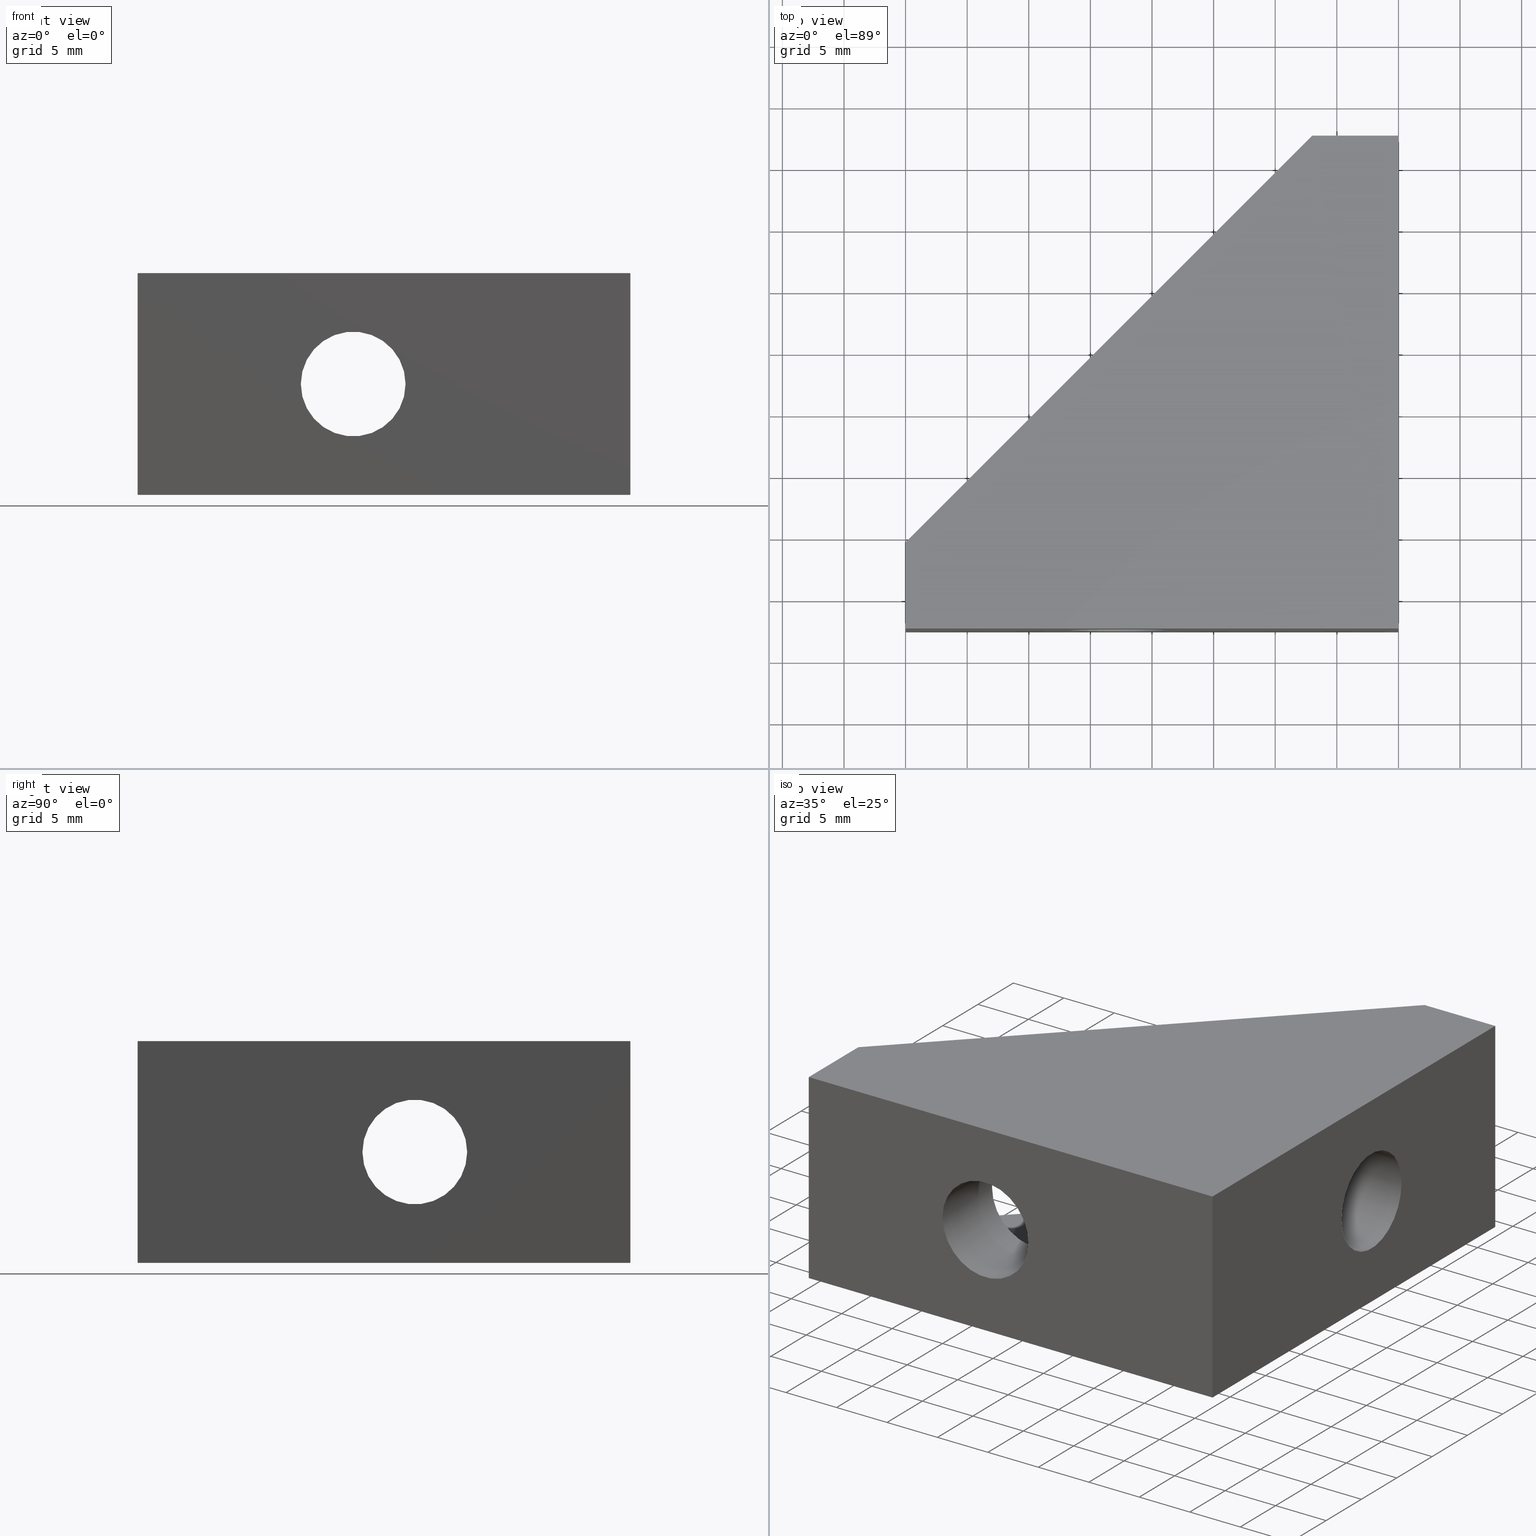
[diagram: canonical four-view strip — front | top / right | iso, engineering-drawing reading convention]
A machine part, canonical four-view strip (front | top / right | iso — engineering-drawing reading convention). The complete STEP part file that produces these views, byte-faithful:
ISO-10303-21;
HEADER;
/* Generated by software containing ST-Developer
 * from STEP Tools, Inc. (www.steptools.com) 
 */

FILE_DESCRIPTION(
/* description */ ('SQUADRETTA 18X40  PER M8'),
/* implementation_level */ '2;1');

FILE_NAME(
/* name */ 
'Q:\\Catalogo\\2_Accessori Dierre\\Per Download Web e catalogo cartace
o\\CATALOGO ELEMENTI ASSEMBLAGGIO\\PAGINA 30\\DSQAL0000002.stp',
/* time_stamp */ '2018-03-07T11:24:41+01:00',
/* author */ ('fzagni'),
/* organization */ (''),
/* preprocessor_version */ 'ST-DEVELOPER v16.1',
/* originating_system */ 'Autodesk Inventor 2016',
/* authorisation */ '');

FILE_SCHEMA (('AUTOMOTIVE_DESIGN { 1 0 10303 214 3 1 1 }'));
ENDSEC;

DATA;
#10=MECHANICAL_DESIGN_GEOMETRIC_PRESENTATION_REPRESENTATION('',(#13),#401);
#11=SHAPE_REPRESENTATION_RELATIONSHIP('SRR','None',#410,#12);
#12=ADVANCED_BREP_SHAPE_REPRESENTATION('',(#14),#400);
#13=STYLED_ITEM('',(#419),#14);
#14=MANIFOLD_SOLID_BREP('None',#249);
#15=CYLINDRICAL_SURFACE('',#267,4.25);
#16=CYLINDRICAL_SURFACE('',#268,4.25);
#17=FACE_BOUND('',#42,.T.);
#18=FACE_BOUND('',#44,.T.);
#19=FACE_BOUND('',#52,.T.);
#20=FACE_BOUND('',#56,.T.);
#21=FACE_BOUND('',#58,.T.);
#22=FACE_BOUND('',#60,.T.);
#23=CIRCLE('',#252,4.25);
#24=CIRCLE('',#254,4.25);
#25=CIRCLE('',#262,4.25);
#26=CIRCLE('',#266,4.25);
#27=FACE_OUTER_BOUND('',#41,.T.);
#28=FACE_OUTER_BOUND('',#43,.T.);
#29=FACE_OUTER_BOUND('',#45,.T.);
#30=FACE_OUTER_BOUND('',#46,.T.);
#31=FACE_OUTER_BOUND('',#47,.T.);
#32=FACE_OUTER_BOUND('',#48,.T.);
#33=FACE_OUTER_BOUND('',#49,.T.);
#34=FACE_OUTER_BOUND('',#50,.T.);
#35=FACE_OUTER_BOUND('',#51,.T.);
#36=FACE_OUTER_BOUND('',#53,.T.);
#37=FACE_OUTER_BOUND('',#54,.T.);
#38=FACE_OUTER_BOUND('',#55,.T.);
#39=FACE_OUTER_BOUND('',#57,.T.);
#40=FACE_OUTER_BOUND('',#59,.T.);
#41=EDGE_LOOP('',(#163,#164,#165,#166));
#42=EDGE_LOOP('',(#167));
#43=EDGE_LOOP('',(#168,#169,#170,#171));
#44=EDGE_LOOP('',(#172));
#45=EDGE_LOOP('',(#173,#174,#175,#176));
#46=EDGE_LOOP('',(#177,#178,#179));
#47=EDGE_LOOP('',(#180,#181,#182,#183,#184));
#48=EDGE_LOOP('',(#185,#186,#187,#188));
#49=EDGE_LOOP('',(#189,#190,#191));
#50=EDGE_LOOP('',(#192,#193,#194,#195,#196));
#51=EDGE_LOOP('',(#197,#198,#199,#200));
#52=EDGE_LOOP('',(#201));
#53=EDGE_LOOP('',(#202,#203,#204,#205,#206,#207));
#54=EDGE_LOOP('',(#208,#209,#210,#211,#212,#213));
#55=EDGE_LOOP('',(#214,#215,#216,#217));
#56=EDGE_LOOP('',(#218));
#57=EDGE_LOOP('',(#219));
#58=EDGE_LOOP('',(#220));
#59=EDGE_LOOP('',(#221));
#60=EDGE_LOOP('',(#222));
#61=LINE('',#337,#87);
#62=LINE('',#339,#88);
#63=LINE('',#341,#89);
#64=LINE('',#342,#90);
#65=LINE('',#347,#91);
#66=LINE('',#349,#92);
#67=LINE('',#350,#93);
#68=LINE('',#356,#94);
#69=LINE('',#357,#95);
#70=LINE('',#358,#96);
#71=LINE('',#359,#97);
#72=LINE('',#363,#98);
#73=LINE('',#365,#99);
#74=LINE('',#367,#100);
#75=LINE('',#368,#101);
#76=LINE('',#371,#102);
#77=LINE('',#372,#103);
#78=LINE('',#374,#104);
#79=LINE('',#375,#105);
#80=LINE('',#379,#106);
#81=LINE('',#381,#107);
#82=LINE('',#383,#108);
#83=LINE('',#384,#109);
#84=LINE('',#386,#110);
#85=LINE('',#387,#111);
#86=LINE('',#392,#112);
#87=VECTOR('',#273,32.9999999998681);
#88=VECTOR('',#274,14.);
#89=VECTOR('',#275,32.9999999998681);
#90=VECTOR('',#276,14.);
#91=VECTOR('',#281,32.9999999998681);
#92=VECTOR('',#282,32.9999999998681);
#93=VECTOR('',#283,14.);
#94=VECTOR('',#288,46.6690475581256);
#95=VECTOR('',#289,2.);
#96=VECTOR('',#290,46.6690475581256);
#97=VECTOR('',#291,2.);
#98=VECTOR('',#296,6.99999999997181);
#99=VECTOR('',#297,39.9999999998399);
#100=VECTOR('',#298,39.9999999998399);
#101=VECTOR('',#299,6.99999999997181);
#102=VECTOR('',#302,2.);
#103=VECTOR('',#303,46.6690475581256);
#104=VECTOR('',#304,2.);
#105=VECTOR('',#305,46.6690475581256);
#106=VECTOR('',#310,6.99999999997181);
#107=VECTOR('',#311,6.99999999997181);
#108=VECTOR('',#312,39.9999999998399);
#109=VECTOR('',#313,39.9999999998399);
#110=VECTOR('',#316,18.);
#111=VECTOR('',#317,18.);
#112=VECTOR('',#324,18.);
#113=VERTEX_POINT('',#335);
#114=VERTEX_POINT('',#336);
#115=VERTEX_POINT('',#338);
#116=VERTEX_POINT('',#340);
#117=VERTEX_POINT('',#343);
#118=VERTEX_POINT('',#346);
#119=VERTEX_POINT('',#348);
#120=VERTEX_POINT('',#351);
#121=VERTEX_POINT('',#354);
#122=VERTEX_POINT('',#355);
#123=VERTEX_POINT('',#362);
#124=VERTEX_POINT('',#364);
#125=VERTEX_POINT('',#366);
#126=VERTEX_POINT('',#370);
#127=VERTEX_POINT('',#373);
#128=VERTEX_POINT('',#378);
#129=VERTEX_POINT('',#380);
#130=VERTEX_POINT('',#382);
#131=VERTEX_POINT('',#388);
#132=VERTEX_POINT('',#394);
#133=EDGE_CURVE('',#113,#114,#61,.T.);
#134=EDGE_CURVE('',#114,#115,#62,.T.);
#135=EDGE_CURVE('',#116,#115,#63,.T.);
#136=EDGE_CURVE('',#113,#116,#64,.T.);
#137=EDGE_CURVE('',#117,#117,#23,.T.);
#138=EDGE_CURVE('',#118,#115,#65,.T.);
#139=EDGE_CURVE('',#119,#114,#66,.T.);
#140=EDGE_CURVE('',#119,#118,#67,.T.);
#141=EDGE_CURVE('',#120,#120,#24,.T.);
#142=EDGE_CURVE('',#121,#122,#68,.T.);
#143=EDGE_CURVE('',#116,#121,#69,.T.);
#144=EDGE_CURVE('',#116,#118,#70,.T.);
#145=EDGE_CURVE('',#118,#122,#71,.T.);
#146=EDGE_CURVE('',#122,#123,#72,.T.);
#147=EDGE_CURVE('',#123,#124,#73,.T.);
#148=EDGE_CURVE('',#124,#125,#74,.T.);
#149=EDGE_CURVE('',#125,#121,#75,.T.);
#150=EDGE_CURVE('',#126,#119,#76,.T.);
#151=EDGE_CURVE('',#119,#113,#77,.T.);
#152=EDGE_CURVE('',#127,#113,#78,.T.);
#153=EDGE_CURVE('',#126,#127,#79,.T.);
#154=EDGE_CURVE('',#126,#128,#80,.T.);
#155=EDGE_CURVE('',#129,#127,#81,.T.);
#156=EDGE_CURVE('',#130,#129,#82,.T.);
#157=EDGE_CURVE('',#128,#130,#83,.T.);
#158=EDGE_CURVE('',#130,#124,#84,.T.);
#159=EDGE_CURVE('',#129,#125,#85,.T.);
#160=EDGE_CURVE('',#131,#131,#25,.T.);
#161=EDGE_CURVE('',#128,#123,#86,.T.);
#162=EDGE_CURVE('',#132,#132,#26,.T.);
#163=ORIENTED_EDGE('',*,*,#133,.T.);
#164=ORIENTED_EDGE('',*,*,#134,.T.);
#165=ORIENTED_EDGE('',*,*,#135,.F.);
#166=ORIENTED_EDGE('',*,*,#136,.F.);
#167=ORIENTED_EDGE('',*,*,#137,.T.);
#168=ORIENTED_EDGE('',*,*,#138,.T.);
#169=ORIENTED_EDGE('',*,*,#134,.F.);
#170=ORIENTED_EDGE('',*,*,#139,.F.);
#171=ORIENTED_EDGE('',*,*,#140,.T.);
#172=ORIENTED_EDGE('',*,*,#141,.F.);
#173=ORIENTED_EDGE('',*,*,#142,.F.);
#174=ORIENTED_EDGE('',*,*,#143,.F.);
#175=ORIENTED_EDGE('',*,*,#144,.T.);
#176=ORIENTED_EDGE('',*,*,#145,.T.);
#177=ORIENTED_EDGE('',*,*,#135,.T.);
#178=ORIENTED_EDGE('',*,*,#138,.F.);
#179=ORIENTED_EDGE('',*,*,#144,.F.);
#180=ORIENTED_EDGE('',*,*,#142,.T.);
#181=ORIENTED_EDGE('',*,*,#146,.T.);
#182=ORIENTED_EDGE('',*,*,#147,.T.);
#183=ORIENTED_EDGE('',*,*,#148,.T.);
#184=ORIENTED_EDGE('',*,*,#149,.T.);
#185=ORIENTED_EDGE('',*,*,#150,.T.);
#186=ORIENTED_EDGE('',*,*,#151,.T.);
#187=ORIENTED_EDGE('',*,*,#152,.F.);
#188=ORIENTED_EDGE('',*,*,#153,.F.);
#189=ORIENTED_EDGE('',*,*,#139,.T.);
#190=ORIENTED_EDGE('',*,*,#133,.F.);
#191=ORIENTED_EDGE('',*,*,#151,.F.);
#192=ORIENTED_EDGE('',*,*,#154,.F.);
#193=ORIENTED_EDGE('',*,*,#153,.T.);
#194=ORIENTED_EDGE('',*,*,#155,.F.);
#195=ORIENTED_EDGE('',*,*,#156,.F.);
#196=ORIENTED_EDGE('',*,*,#157,.F.);
#197=ORIENTED_EDGE('',*,*,#148,.F.);
#198=ORIENTED_EDGE('',*,*,#158,.F.);
#199=ORIENTED_EDGE('',*,*,#156,.T.);
#200=ORIENTED_EDGE('',*,*,#159,.T.);
#201=ORIENTED_EDGE('',*,*,#160,.F.);
#202=ORIENTED_EDGE('',*,*,#143,.T.);
#203=ORIENTED_EDGE('',*,*,#149,.F.);
#204=ORIENTED_EDGE('',*,*,#159,.F.);
#205=ORIENTED_EDGE('',*,*,#155,.T.);
#206=ORIENTED_EDGE('',*,*,#152,.T.);
#207=ORIENTED_EDGE('',*,*,#136,.T.);
#208=ORIENTED_EDGE('',*,*,#146,.F.);
#209=ORIENTED_EDGE('',*,*,#145,.F.);
#210=ORIENTED_EDGE('',*,*,#140,.F.);
#211=ORIENTED_EDGE('',*,*,#150,.F.);
#212=ORIENTED_EDGE('',*,*,#154,.T.);
#213=ORIENTED_EDGE('',*,*,#161,.T.);
#214=ORIENTED_EDGE('',*,*,#157,.T.);
#215=ORIENTED_EDGE('',*,*,#158,.T.);
#216=ORIENTED_EDGE('',*,*,#147,.F.);
#217=ORIENTED_EDGE('',*,*,#161,.F.);
#218=ORIENTED_EDGE('',*,*,#162,.T.);
#219=ORIENTED_EDGE('',*,*,#137,.F.);
#220=ORIENTED_EDGE('',*,*,#160,.T.);
#221=ORIENTED_EDGE('',*,*,#162,.F.);
#222=ORIENTED_EDGE('',*,*,#141,.T.);
#223=PLANE('',#251);
#224=PLANE('',#253);
#225=PLANE('',#255);
#226=PLANE('',#256);
#227=PLANE('',#257);
#228=PLANE('',#258);
#229=PLANE('',#259);
#230=PLANE('',#260);
#231=PLANE('',#261);
#232=PLANE('',#263);
#233=PLANE('',#264);
#234=PLANE('',#265);
#235=ADVANCED_FACE('',(#27,#17),#223,.T.);
#236=ADVANCED_FACE('',(#28,#18),#224,.T.);
#237=ADVANCED_FACE('',(#29),#225,.F.);
#238=ADVANCED_FACE('',(#30),#226,.F.);
#239=ADVANCED_FACE('',(#31),#227,.T.);
#240=ADVANCED_FACE('',(#32),#228,.F.);
#241=ADVANCED_FACE('',(#33),#229,.F.);
#242=ADVANCED_FACE('',(#34),#230,.F.);
#243=ADVANCED_FACE('',(#35,#19),#231,.T.);
#244=ADVANCED_FACE('',(#36),#232,.T.);
#245=ADVANCED_FACE('',(#37),#233,.T.);
#246=ADVANCED_FACE('',(#38,#20),#234,.T.);
#247=ADVANCED_FACE('',(#39,#21),#15,.F.);
#248=ADVANCED_FACE('',(#40,#22),#16,.F.);
#249=CLOSED_SHELL('',(#235,#236,#237,#238,#239,#240,#241,#242,#243,#244,
#245,#246,#247,#248));
#250=AXIS2_PLACEMENT_3D('placement',#333,#269,#270);
#251=AXIS2_PLACEMENT_3D('',#334,#271,#272);
#252=AXIS2_PLACEMENT_3D('',#344,#277,#278);
#253=AXIS2_PLACEMENT_3D('',#345,#279,#280);
#254=AXIS2_PLACEMENT_3D('',#352,#284,#285);
#255=AXIS2_PLACEMENT_3D('',#353,#286,#287);
#256=AXIS2_PLACEMENT_3D('',#360,#292,#293);
#257=AXIS2_PLACEMENT_3D('',#361,#294,#295);
#258=AXIS2_PLACEMENT_3D('',#369,#300,#301);
#259=AXIS2_PLACEMENT_3D('',#376,#306,#307);
#260=AXIS2_PLACEMENT_3D('',#377,#308,#309);
#261=AXIS2_PLACEMENT_3D('',#385,#314,#315);
#262=AXIS2_PLACEMENT_3D('',#389,#318,#319);
#263=AXIS2_PLACEMENT_3D('',#390,#320,#321);
#264=AXIS2_PLACEMENT_3D('',#391,#322,#323);
#265=AXIS2_PLACEMENT_3D('',#393,#325,#326);
#266=AXIS2_PLACEMENT_3D('',#395,#327,#328);
#267=AXIS2_PLACEMENT_3D('',#396,#329,#330);
#268=AXIS2_PLACEMENT_3D('',#397,#331,#332);
#269=DIRECTION('axis',(0.,0.,1.));
#270=DIRECTION('refdir',(1.,0.,0.));
#271=DIRECTION('center_axis',(-1.,0.,0.));
#272=DIRECTION('ref_axis',(0.,0.,1.));
#273=DIRECTION('',(0.,-1.,0.));
#274=DIRECTION('',(0.,0.,1.));
#275=DIRECTION('',(0.,-1.,0.));
#276=DIRECTION('',(0.,0.,1.));
#277=DIRECTION('center_axis',(1.,0.,0.));
#278=DIRECTION('ref_axis',(0.,1.,0.));
#279=DIRECTION('center_axis',(0.,1.,0.));
#280=DIRECTION('ref_axis',(0.,0.,1.));
#281=DIRECTION('',(1.,0.,0.));
#282=DIRECTION('',(1.,0.,0.));
#283=DIRECTION('',(0.,0.,1.));
#284=DIRECTION('center_axis',(0.,1.,0.));
#285=DIRECTION('ref_axis',(-1.,0.,0.));
#286=DIRECTION('center_axis',(0.707106781186548,-0.707106781186548,0.));
#287=DIRECTION('ref_axis',(0.,0.,-1.));
#288=DIRECTION('',(-0.707106781186548,-0.707106781186548,0.));
#289=DIRECTION('',(0.,0.,1.));
#290=DIRECTION('',(-0.707106781186548,-0.707106781186548,0.));
#291=DIRECTION('',(0.,0.,1.));
#292=DIRECTION('center_axis',(0.,0.,1.));
#293=DIRECTION('ref_axis',(1.,0.,0.));
#294=DIRECTION('center_axis',(0.,0.,1.));
#295=DIRECTION('ref_axis',(1.,0.,0.));
#296=DIRECTION('',(0.,-1.,0.));
#297=DIRECTION('',(1.,0.,0.));
#298=DIRECTION('',(0.,1.,0.));
#299=DIRECTION('',(-1.,0.,0.));
#300=DIRECTION('center_axis',(0.707106781186548,-0.707106781186548,0.));
#301=DIRECTION('ref_axis',(0.,0.,-1.));
#302=DIRECTION('',(0.,0.,1.));
#303=DIRECTION('',(0.707106781186548,0.707106781186548,0.));
#304=DIRECTION('',(0.,0.,1.));
#305=DIRECTION('',(0.707106781186548,0.707106781186548,0.));
#306=DIRECTION('center_axis',(0.,0.,-1.));
#307=DIRECTION('ref_axis',(-1.,0.,0.));
#308=DIRECTION('center_axis',(0.,0.,1.));
#309=DIRECTION('ref_axis',(1.,0.,0.));
#310=DIRECTION('',(0.,-1.,0.));
#311=DIRECTION('',(-1.,0.,0.));
#312=DIRECTION('',(0.,1.,0.));
#313=DIRECTION('',(1.,0.,0.));
#314=DIRECTION('center_axis',(1.,0.,0.));
#315=DIRECTION('ref_axis',(0.,0.,-1.));
#316=DIRECTION('',(0.,0.,1.));
#317=DIRECTION('',(0.,0.,1.));
#318=DIRECTION('center_axis',(1.,0.,0.));
#319=DIRECTION('ref_axis',(0.,1.,0.));
#320=DIRECTION('center_axis',(0.,1.,0.));
#321=DIRECTION('ref_axis',(0.,0.,1.));
#322=DIRECTION('center_axis',(-1.,0.,0.));
#323=DIRECTION('ref_axis',(0.,0.,1.));
#324=DIRECTION('',(0.,0.,1.));
#325=DIRECTION('center_axis',(0.,-1.,0.));
#326=DIRECTION('ref_axis',(0.,0.,-1.));
#327=DIRECTION('center_axis',(0.,1.,0.));
#328=DIRECTION('ref_axis',(-1.,0.,0.));
#329=DIRECTION('center_axis',(1.,0.,0.));
#330=DIRECTION('ref_axis',(0.,1.,0.));
#331=DIRECTION('center_axis',(0.,1.,0.));
#332=DIRECTION('ref_axis',(-1.,0.,0.));
#333=CARTESIAN_POINT('',(0.,0.,0.));
#334=CARTESIAN_POINT('Origin',(-6.99999999997181,17.49999999993,-8.99999999996408));
#335=CARTESIAN_POINT('',(-6.99999999997181,17.49999999993,-6.99999999996408));
#336=CARTESIAN_POINT('',(-6.99999999997181,-15.4999999999382,-6.99999999996408));
#337=CARTESIAN_POINT('',(-6.99999999997181,17.49999999993,-6.99999999996408));
#338=CARTESIAN_POINT('',(-6.99999999997181,-15.4999999999382,7.00000000003592));
#339=CARTESIAN_POINT('',(-6.99999999997181,-15.4999999999382,-6.99999999996408));
#340=CARTESIAN_POINT('',(-6.99999999997181,17.49999999993,7.00000000003592));
#341=CARTESIAN_POINT('',(-6.99999999997181,17.49999999993,7.00000000003592));
#342=CARTESIAN_POINT('',(-6.99999999997181,17.49999999993,-6.99999999996408));
#343=CARTESIAN_POINT('',(-6.99999999997181,-4.25,0.));
#344=CARTESIAN_POINT('Origin',(-6.99999999997181,0.,0.));
#345=CARTESIAN_POINT('Origin',(-6.99999999997181,-15.4999999999382,-8.99999999996408));
#346=CARTESIAN_POINT('',(-39.9999999998399,-15.4999999999382,7.00000000003592));
#347=CARTESIAN_POINT('',(-39.9999999998399,-15.4999999999382,7.00000000003592));
#348=CARTESIAN_POINT('',(-39.9999999998399,-15.4999999999382,-6.99999999996408));
#349=CARTESIAN_POINT('',(-39.9999999998399,-15.4999999999382,-6.99999999996408));
#350=CARTESIAN_POINT('',(-39.9999999998399,-15.4999999999382,-6.99999999996408));
#351=CARTESIAN_POINT('',(-18.2499999999268,-15.4999999999382,3.592504E-11));
#352=CARTESIAN_POINT('Origin',(-22.4999999999268,-15.4999999999382,3.592504E-11));
#353=CARTESIAN_POINT('Origin',(-6.99999999997181,17.49999999993,9.00000000003593));
#354=CARTESIAN_POINT('',(-6.99999999997181,17.49999999993,9.00000000003593));
#355=CARTESIAN_POINT('',(-39.9999999998399,-15.4999999999382,9.00000000003593));
#356=CARTESIAN_POINT('',(-6.99999999997181,17.49999999993,9.00000000003593));
#357=CARTESIAN_POINT('',(-6.99999999997181,17.49999999993,7.00000000003592));
#358=CARTESIAN_POINT('',(-6.99999999997181,17.49999999993,7.00000000003592));
#359=CARTESIAN_POINT('',(-39.9999999998399,-15.4999999999382,7.00000000003592));
#360=CARTESIAN_POINT('Origin',(-44.0000047242893,-26.5000047243593,7.00000000003592));
#361=CARTESIAN_POINT('Origin',(-40.0000433069272,-22.5000433069972,9.00000000003593));
#362=CARTESIAN_POINT('',(-39.9999999998399,-22.49999999991,9.00000000003593));
#363=CARTESIAN_POINT('',(-39.9999999998399,-15.4999999999382,9.00000000003593));
#364=CARTESIAN_POINT('',(0.,-22.49999999991,9.00000000003593));
#365=CARTESIAN_POINT('',(-39.9999999998399,-22.49999999991,9.00000000003593));
#366=CARTESIAN_POINT('',(0.,17.49999999993,9.00000000003593));
#367=CARTESIAN_POINT('',(0.,-22.49999999991,9.00000000003593));
#368=CARTESIAN_POINT('',(0.,17.49999999993,9.00000000003593));
#369=CARTESIAN_POINT('Origin',(-39.9999999998399,-15.4999999999382,-8.99999999996408));
#370=CARTESIAN_POINT('',(-39.9999999998399,-15.4999999999382,-8.99999999996408));
#371=CARTESIAN_POINT('',(-39.9999999998399,-15.4999999999382,-8.99999999996408));
#372=CARTESIAN_POINT('',(-39.9999999998399,-15.4999999999382,-6.99999999996408));
#373=CARTESIAN_POINT('',(-6.99999999997181,17.49999999993,-8.99999999996408));
#374=CARTESIAN_POINT('',(-6.99999999997181,17.49999999993,-8.99999999996408));
#375=CARTESIAN_POINT('',(-39.9999999998399,-15.4999999999382,-8.99999999996408));
#376=CARTESIAN_POINT('Origin',(-44.0000047242893,21.5000047243793,-6.99999999996408));
#377=CARTESIAN_POINT('Origin',(-40.0000433069272,-22.5000433069972,-8.99999999996408));
#378=CARTESIAN_POINT('',(-39.9999999998399,-22.49999999991,-8.99999999996408));
#379=CARTESIAN_POINT('',(-39.9999999998399,-15.4999999999382,-8.99999999996408));
#380=CARTESIAN_POINT('',(0.,17.49999999993,-8.99999999996408));
#381=CARTESIAN_POINT('',(0.,17.49999999993,-8.99999999996408));
#382=CARTESIAN_POINT('',(0.,-22.49999999991,-8.99999999996408));
#383=CARTESIAN_POINT('',(0.,-22.49999999991,-8.99999999996408));
#384=CARTESIAN_POINT('',(-39.9999999998399,-22.49999999991,-8.99999999996408));
#385=CARTESIAN_POINT('Origin',(0.,-22.5000433069972,-9.00004330705133));
#386=CARTESIAN_POINT('',(0.,-22.49999999991,-8.99999999996408));
#387=CARTESIAN_POINT('',(0.,17.49999999993,-8.99999999996408));
#388=CARTESIAN_POINT('',(0.,-4.25,0.));
#389=CARTESIAN_POINT('Origin',(0.,0.,0.));
#390=CARTESIAN_POINT('Origin',(4.3307087253E-5,17.49999999993,-9.00004330705133));
#391=CARTESIAN_POINT('Origin',(-39.9999999998399,-15.4999566928509,-9.00004330705133));
#392=CARTESIAN_POINT('',(-39.9999999998399,-22.49999999991,-8.99999999996408));
#393=CARTESIAN_POINT('Origin',(-40.0000433069272,-22.49999999991,-9.00004330705133));
#394=CARTESIAN_POINT('',(-18.2499999999268,-22.49999999991,3.592504E-11));
#395=CARTESIAN_POINT('Origin',(-22.4999999999268,-22.49999999991,3.592504E-11));
#396=CARTESIAN_POINT('Origin',(0.,0.,0.));
#397=CARTESIAN_POINT('Origin',(-22.4999999999268,-15.4999999999382,3.592504E-11));
#398=UNCERTAINTY_MEASURE_WITH_UNIT(LENGTH_MEASURE(0.01),#402,
'DISTANCE_ACCURACY_VALUE',
'Maximum model space distance between geometric entities at asserted c
onnectivities');
#399=UNCERTAINTY_MEASURE_WITH_UNIT(LENGTH_MEASURE(1.E-6),#402,
'DISTANCE_ACCURACY_VALUE',
'Maximum model space distance between geometric entities at asserted c
onnectivities');
#400=(
GEOMETRIC_REPRESENTATION_CONTEXT(3)
GLOBAL_UNCERTAINTY_ASSIGNED_CONTEXT((#398))
GLOBAL_UNIT_ASSIGNED_CONTEXT((#402,#405,#403))
REPRESENTATION_CONTEXT('','3D')
);
#401=(
GEOMETRIC_REPRESENTATION_CONTEXT(3)
GLOBAL_UNCERTAINTY_ASSIGNED_CONTEXT((#399))
GLOBAL_UNIT_ASSIGNED_CONTEXT((#402,#405,#403))
REPRESENTATION_CONTEXT('','3D')
);
#402=(
LENGTH_UNIT()
NAMED_UNIT(*)
SI_UNIT(.MILLI.,.METRE.)
);
#403=(
NAMED_UNIT(*)
SI_UNIT($,.STERADIAN.)
SOLID_ANGLE_UNIT()
);
#404=DIMENSIONAL_EXPONENTS(0.,0.,0.,0.,0.,0.,0.);
#405=(
CONVERSION_BASED_UNIT('degree',#407)
NAMED_UNIT(#404)
PLANE_ANGLE_UNIT()
);
#406=(
NAMED_UNIT(*)
PLANE_ANGLE_UNIT()
SI_UNIT($,.RADIAN.)
);
#407=PLANE_ANGLE_MEASURE_WITH_UNIT(PLANE_ANGLE_MEASURE(0.01745329252),#406);
#408=SHAPE_DEFINITION_REPRESENTATION(#409,#410);
#409=PRODUCT_DEFINITION_SHAPE('',$,#412);
#410=SHAPE_REPRESENTATION('',(#250),#400);
#411=PRODUCT_DEFINITION_CONTEXT('part definition',#416,'design');
#412=PRODUCT_DEFINITION('959510003002','959510003002',#413,#411);
#413=PRODUCT_DEFINITION_FORMATION('','A',#418);
#414=PRODUCT_RELATED_PRODUCT_CATEGORY('959510003002','959510003002',(#418));
#415=APPLICATION_PROTOCOL_DEFINITION('international standard',
'automotive_design',2009,#416);
#416=APPLICATION_CONTEXT(
'Core Data for Automotive Mechanical Design Process');
#417=PRODUCT_CONTEXT('part definition',#416,'mechanical');
#418=PRODUCT('959510003002','959510003002',$,(#417));
#419=PRESENTATION_STYLE_ASSIGNMENT((#420));
#420=SURFACE_STYLE_USAGE(.BOTH.,#421);
#421=SURFACE_SIDE_STYLE('',(#422));
#422=SURFACE_STYLE_FILL_AREA(#423);
#423=FILL_AREA_STYLE('',(#424));
#424=FILL_AREA_STYLE_COLOUR('',#425);
#425=COLOUR_RGB('',0.745098039215686,0.752941176470588,0.756862745098039);
ENDSEC;
END-ISO-10303-21;
